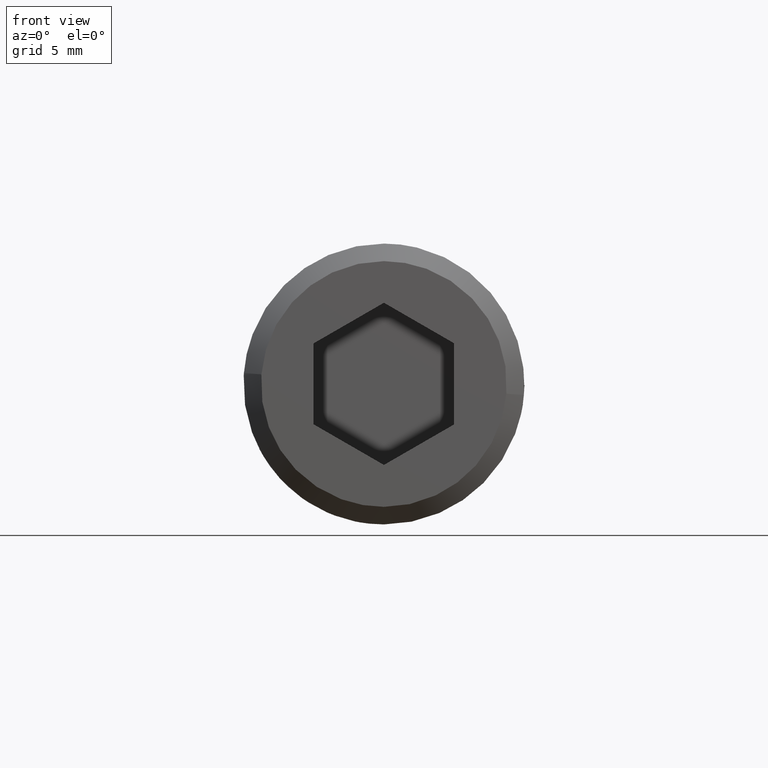
[diagram: clean part render]
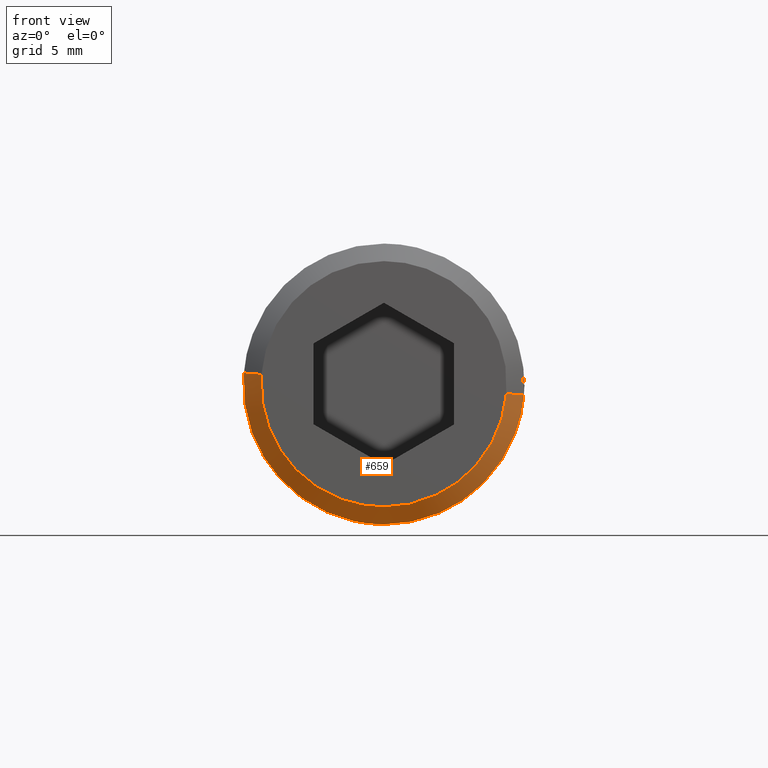
[diagram: same view with one face highlighted and labeled with its STEP entity id]
A machine part, front view. The second image highlights one B-rep face of the part: STEP entity #659.
In plain terms, the highlighted face is a freeform B-spline surface patch.
Its self-contained STEP definition (entity closure, byte-faithful):
#477=CARTESIAN_POINT('',(-7.985078429134152,-33.099999999999987,0.488387633520728));
#478=VERTEX_POINT('',#477);
#484=CARTESIAN_POINT('',(-7.975338669866337,-33.099999999996683,0.627672765848300));
#485=VERTEX_POINT('',#484);
#486=CARTESIAN_POINT('',(-7.975338669866338,-33.099999999996683,0.627672765848300));
#487=CARTESIAN_POINT('',(-7.980816340779448,-33.100000000000009,0.558072357712341));
#488=CARTESIAN_POINT('',(-7.985078429134153,-33.099999999999994,0.488387633520728));
#496=(BOUNDED_CURVE()B_SPLINE_CURVE(2,(#486,#487,#488),.UNSPECIFIED.,.F.,.U.)B_SPLINE_CURVE_WITH_KNOTS((3,3),(0.736331300631680,0.739332991748937),.UNSPECIFIED.)CURVE()GEOMETRIC_REPRESENTATION_ITEM()RATIONAL_B_SPLINE_CURVE((0.969723356169547,0.972855506353582,0.976072104912261))REPRESENTATION_ITEM(''));
#497=EDGE_CURVE('',#485,#478,#496,.T.);
#537=CARTESIAN_POINT('',(7.975338669866336,-33.099999999996683,-0.627672765848304));
#538=VERTEX_POINT('',#537);
#554=CARTESIAN_POINT('',(0.0,-33.099999999999987,-8.000000000000002));
#555=VERTEX_POINT('',#554);
#556=CARTESIAN_POINT('',(0.0,-33.099999999999987,-8.000000000000002));
#557=CARTESIAN_POINT('',(7.395123933218631,-33.099999999999987,-8.000000000000002));
#558=CARTESIAN_POINT('',(7.975338669866337,-33.099999999996683,-0.627672765848304));
#566=(BOUNDED_CURVE()B_SPLINE_CURVE(2,(#556,#557,#558),.UNSPECIFIED.,.F.,.U.)B_SPLINE_CURVE_WITH_KNOTS((3,3),(0.0,0.236331300631680),.UNSPECIFIED.)CURVE()GEOMETRIC_REPRESENTATION_ITEM()RATIONAL_B_SPLINE_CURVE((1.0,0.723120658606470,0.969723356169548))REPRESENTATION_ITEM(''));
#567=EDGE_CURVE('',#555,#538,#566,.T.);
#569=CARTESIAN_POINT('',(-7.985078429134152,-33.099999999999987,0.488387633520728));
#570=CARTESIAN_POINT('',(-8.000000000000002,-33.099999999999994,0.244421421716201));
#571=CARTESIAN_POINT('',(-8.0,-33.099999999999987,-1.291960E-015));
#572=CARTESIAN_POINT('',(-8.0,-33.099999999999994,-8.000000000000002));
#573=CARTESIAN_POINT('',(0.0,-33.099999999999987,-8.000000000000002));
#581=(BOUNDED_CURVE()B_SPLINE_CURVE(2,(#569,#570,#571,#572,#573),.UNSPECIFIED.,.F.,.U.)B_SPLINE_CURVE_WITH_KNOTS((3,2,3),(0.739332991748936,0.750000000000000,1.0),.UNSPECIFIED.)CURVE()GEOMETRIC_REPRESENTATION_ITEM()RATIONAL_B_SPLINE_CURVE((0.976072104912259,0.987502822472945,1.0,0.707106781186548,1.0))REPRESENTATION_ITEM(''));
#582=EDGE_CURVE('',#478,#555,#581,.T.);
#592=CARTESIAN_POINT('',(6.953498402788565,-34.125000000000000,-0.547252192701724));
#593=CARTESIAN_POINT('',(6.406246210086843,-34.125000000000007,-7.500750595490289));
#594=CARTESIAN_POINT('',(-0.547252192701723,-34.125000000000000,-6.953498402788566));
#595=CARTESIAN_POINT('',(-7.500750595490287,-34.125000000000007,-6.406246210086843));
#596=CARTESIAN_POINT('',(-6.953498402788565,-34.125000000000000,0.547252192701721));
#597=CARTESIAN_POINT('',(8.000884676541947,-33.074374999999989,-0.629683280150793));
#598=CARTESIAN_POINT('',(7.371201396391154,-33.074374999999989,-8.630567956692740));
#599=CARTESIAN_POINT('',(-0.629683280150792,-33.074374999999989,-8.000884676541949));
#600=CARTESIAN_POINT('',(-8.630567956692740,-33.074374999999989,-7.371201396391157));
#601=CARTESIAN_POINT('',(-8.000884676541947,-33.074374999999989,0.629683280150790));
#609=(BOUNDED_SURFACE()B_SPLINE_SURFACE(2,1,((#592,#597),(#593,#598),(#594,#599),(#595,#600),(#596,#601)),.UNSPECIFIED.,.F.,.F.,.U.)B_SPLINE_SURFACE_WITH_KNOTS((3,2,3),(2,2),(0.0,13.297290886082310,26.594581772164609),(0.0,1.0),.UNSPECIFIED.)GEOMETRIC_REPRESENTATION_ITEM()RATIONAL_B_SPLINE_SURFACE(((1.0,1.0),(0.707106781186548,0.707106781186548),(1.0,1.0),(0.707106781186548,0.707106781186548),(1.0,1.0)))REPRESENTATION_ITEM('')SURFACE());
#610=ORIENTED_EDGE('',*,*,#567,.T.);
#611=CARTESIAN_POINT('',(6.978421336135515,-34.099999999990906,-0.549213670164834));
#612=VERTEX_POINT('',#611);
#613=CARTESIAN_POINT('',(6.978421336135515,-34.099999999990906,-0.549213670164834));
#614=CARTESIAN_POINT('',(7.975338669866336,-33.099999999996683,-0.627672765848304));
#615=QUASI_UNIFORM_CURVE('',1,(#613,#614),.UNSPECIFIED.,.F.,.U.);
#616=EDGE_CURVE('',#612,#538,#615,.T.);
#617=ORIENTED_EDGE('',*,*,#616,.F.);
#618=CARTESIAN_POINT('',(0.0,-34.100000000000001,-7.000000000000001));
#619=VERTEX_POINT('',#618);
#620=CARTESIAN_POINT('',(0.0,-34.100000000000001,-7.000000000000001));
#621=CARTESIAN_POINT('',(6.470733441478718,-34.100000000000009,-7.000000000000002));
#622=CARTESIAN_POINT('',(6.978421336135515,-34.099999999990906,-0.549213670164834));
#630=(BOUNDED_CURVE()B_SPLINE_CURVE(2,(#620,#621,#622),.UNSPECIFIED.,.F.,.U.)B_SPLINE_CURVE_WITH_KNOTS((3,3),(0.0,0.236331300629367),.UNSPECIFIED.)CURVE()GEOMETRIC_REPRESENTATION_ITEM()RATIONAL_B_SPLINE_CURVE((1.0,0.723120658609180,0.969723356164720))REPRESENTATION_ITEM(''));
#631=EDGE_CURVE('',#619,#612,#630,.T.);
#632=ORIENTED_EDGE('',*,*,#631,.F.);
#633=CARTESIAN_POINT('',(-6.978421336135515,-34.099999999990906,0.549213670164833));
#634=VERTEX_POINT('',#633);
#635=CARTESIAN_POINT('',(-6.978421336135515,-34.099999999990906,0.549213670164833));
#636=CARTESIAN_POINT('',(-7.000000000000001,-34.100000000000016,0.275030749123211));
#637=CARTESIAN_POINT('',(-7.0,-34.100000000000001,-1.291960E-015));
#638=CARTESIAN_POINT('',(-6.999999999999999,-34.100000000000001,-7.000000000000002));
#639=CARTESIAN_POINT('',(0.0,-34.100000000000001,-7.000000000000001));
#647=(BOUNDED_CURVE()B_SPLINE_CURVE(2,(#635,#636,#637,#638,#639),.UNSPECIFIED.,.F.,.U.)B_SPLINE_CURVE_WITH_KNOTS((3,2,3),(0.736331300629367,0.750000000000000,1.0),.UNSPECIFIED.)CURVE()GEOMETRIC_REPRESENTATION_ITEM()RATIONAL_B_SPLINE_CURVE((0.969723356164720,0.983986122577367,1.0,0.707106781186547,1.0))REPRESENTATION_ITEM(''));
#648=EDGE_CURVE('',#634,#619,#647,.T.);
#649=ORIENTED_EDGE('',*,*,#648,.F.);
#650=CARTESIAN_POINT('',(-6.978421336135515,-34.099999999990906,0.549213670164833));
#651=CARTESIAN_POINT('',(-7.975338669866337,-33.099999999996683,0.627672765848300));
#652=QUASI_UNIFORM_CURVE('',1,(#650,#651),.UNSPECIFIED.,.F.,.U.);
#653=EDGE_CURVE('',#634,#485,#652,.T.);
#654=ORIENTED_EDGE('',*,*,#653,.T.);
#655=ORIENTED_EDGE('',*,*,#497,.T.);
#656=ORIENTED_EDGE('',*,*,#582,.T.);
#657=EDGE_LOOP('',(#610,#617,#632,#649,#654,#655,#656));
#658=FACE_OUTER_BOUND('',#657,.T.);
#659=ADVANCED_FACE('',(#658),#609,.T.);